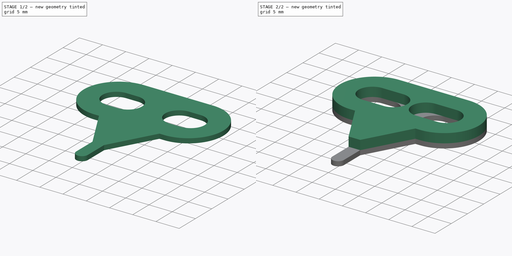
[diagram: build sequence overview — one tinted view per stage of 2, left to right]
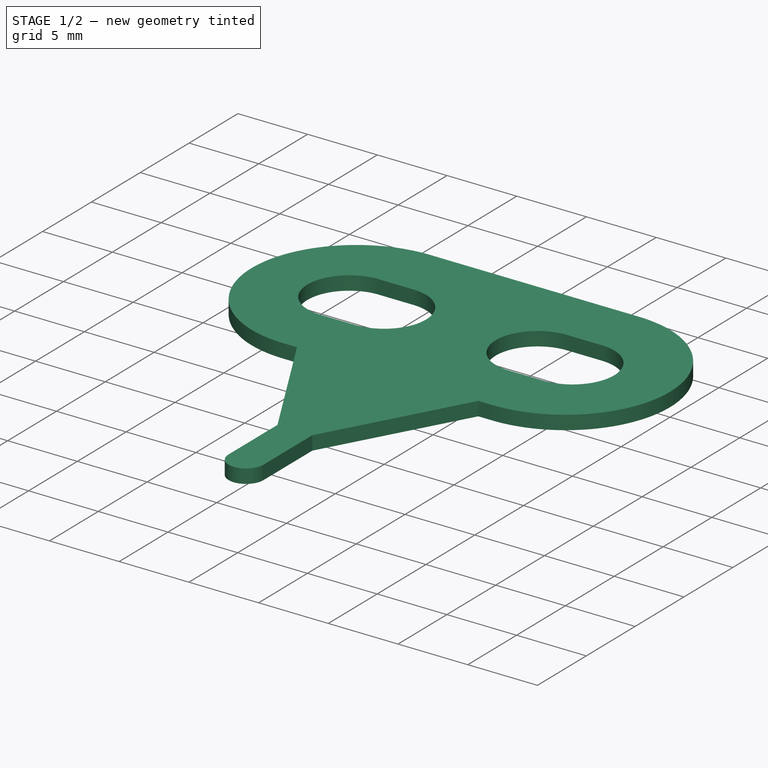
[diagram: stage 1 of 2 — iso view after this stage's code; geometry added in this stage tinted green]
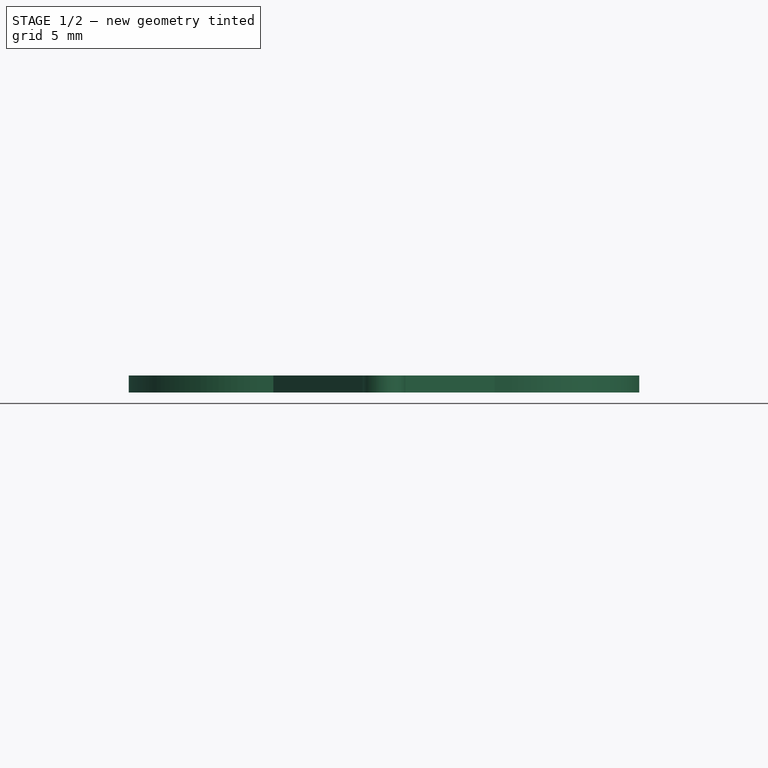
[diagram: stage 1 of 2 — front view after this stage's code; geometry added in this stage tinted green]
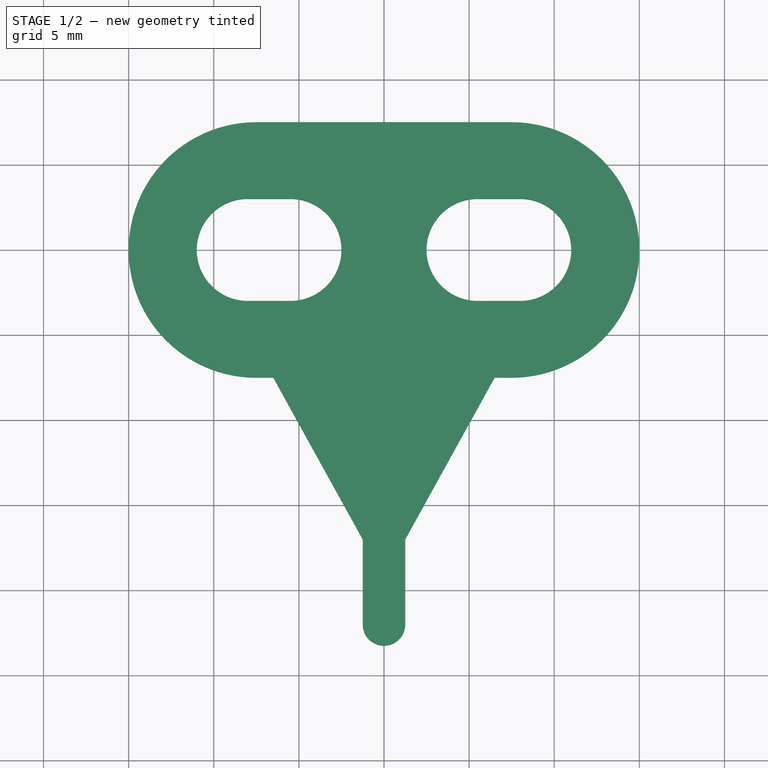
[diagram: stage 1 of 2 — top view after this stage's code; geometry added in this stage tinted green]
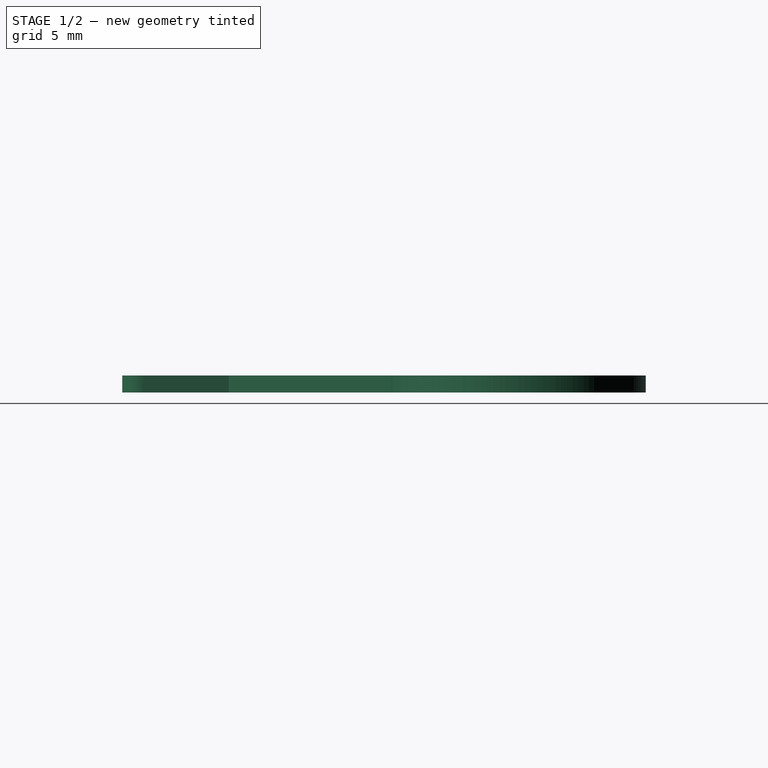
[diagram: stage 1 of 2 — right view after this stage's code; geometry added in this stage tinted green]
FCSTD DOCUMENT  (FreeCAD 0.18.3R)
Label: photo-disc
License: All rights reserved
LicenseURL: http://en.wikipedia.org/wiki/All_rights_reserved
objects: Sketcher::SketchObject×2, PartDesign::Pad×2, PartDesign::Body×1
note: 7 computed .brp shape members not serialized (recipe doc carries the construction recipe); baked Part::Feature solids carry a one-line shape summary decoded from their .brp

FEATURE [Sketcher::SketchObject] Sketch
  MapMode = 5
  Support = -> [XY_Plane]
  sketch-geometry (21):
    g0: ArcOfCircle CenterX=-7.5 CenterY=6e-16 CenterZ=0 NormalX=0 NormalY=0 NormalZ=1 AngleXU=0 Radius=7.5 StartAngle=1.5708 EndAngle=4.71239
    g1: ArcOfCircle CenterX=7.5 CenterY=-6e-16 CenterZ=0 NormalX=0 NormalY=0 NormalZ=1 AngleXU=0 Radius=7.5 StartAngle=4.71239 EndAngle=6.28319
    g2: LineSegment StartX=-7.5 StartY=7.5 StartZ=0 EndX=7.50003 EndY=7.5 EndZ=0
    g3: ArcOfCircle CenterX=-8 CenterY=0 CenterZ=0 NormalX=0 NormalY=0 NormalZ=1 AngleXU=0 Radius=3 StartAngle=1.5708 EndAngle=4.71239
    g4: ArcOfCircle CenterX=-5.5 CenterY=-2e-16 CenterZ=0 NormalX=0 NormalY=0 NormalZ=1 AngleXU=0 Radius=3 StartAngle=4.71239 EndAngle=7.85398
    g5: LineSegment StartX=-8 StartY=-3 StartZ=0 EndX=-5.5 EndY=-3 EndZ=0
    g6: LineSegment StartX=-8 StartY=3 StartZ=0 EndX=-5.5 EndY=3 EndZ=0
    g7: ArcOfCircle CenterX=5.5 CenterY=-2e-16 CenterZ=0 NormalX=0 NormalY=0 NormalZ=1 AngleXU=0 Radius=3 StartAngle=1.5708 EndAngle=4.71239
    g8: ArcOfCircle CenterX=8 CenterY=0 CenterZ=0 NormalX=0 NormalY=0 NormalZ=1 AngleXU=0 Radius=3 StartAngle=4.71239 EndAngle=7.85398
    g9: LineSegment StartX=5.5 StartY=-3 StartZ=0 EndX=8 EndY=-3 EndZ=0
    g10: LineSegment StartX=5.5 StartY=3 StartZ=0 EndX=8 EndY=3 EndZ=0
    g11: ArcOfCircle CenterX=7.5 CenterY=-6e-16 CenterZ=0 NormalX=0 NormalY=0 NormalZ=1 AngleXU=0 Radius=7.5 StartAngle=1e-16 EndAngle=1.57079
    g12: LineSegment [constr] StartX=-8 StartY=0 StartZ=0 EndX=0 EndY=0 EndZ=0
    g13: LineSegment [constr] StartX=0 StartY=0 StartZ=0 EndX=8 EndY=0 EndZ=0
    g14: ArcOfCircle CenterX=1.3e-15 CenterY=-22 CenterZ=0 NormalX=0 NormalY=0 NormalZ=1 AngleXU=0 Radius=1.25 StartAngle=3.14159 EndAngle=6.28319
    g15: LineSegment StartX=-7.5 StartY=-7.5 StartZ=0 EndX=-6.5 EndY=-7.5 EndZ=0
    g16: LineSegment StartX=6.5 StartY=-7.5 StartZ=0 EndX=7.5 EndY=-7.5 EndZ=0
    g17: LineSegment StartX=-1.25 StartY=-22 StartZ=0 EndX=-1.25 EndY=-17 EndZ=0
    g18: LineSegment StartX=1.25 StartY=-22 StartZ=0 EndX=1.25 EndY=-17 EndZ=0
    g19: LineSegment StartX=1.25 StartY=-17 StartZ=0 EndX=6.5 EndY=-7.5 EndZ=0
    g20: LineSegment StartX=-1.25 StartY=-17 StartZ=0 EndX=-6.5 EndY=-7.5 EndZ=0
  constraints (56):
    c: Tangent(g0,g2) = 1.5708
    c: Coincident(g2,g11) = 1.5708
    c: Equal(g0,g1)
    c: DistanceX(g0,g1) = 15
    c: DistanceY(g0,g0) = 15
    c: Symmetric(g0,g1,g-1)
    c: Tangent(g3,g6) = 1.5708
    c: Tangent(g3,g5) = -1.5708
    c: Tangent(g5,g4) = -1.5708
    c: Tangent(g6,g4) = 1.5708
    c: Horizontal(g5)
    c: Equal(g3,g4)
    c: Tangent(g7,g10) = 1.5708
    c: Tangent(g7,g9) = -1.5708
    c: Tangent(g9,g8) = -1.5708
    c: Tangent(g10,g8) = 1.5708
    c: Horizontal(g9)
    c: Equal(g7,g8)
    c: DistanceY(g3,g3) = 6
    c: DistanceY(g7,g7) = 6
    c: Coincident(g1,g11)
    c: Horizontal(g2)
    c: DistanceX(g3,g0) = 0.5
    c: DistanceX(g1,g8) = 0.5
    c: DistanceX(g0,g4) = 2
    c: DistanceX(g7,g1) = 2
    c: Coincident(g12,g3)
    c: Coincident(g12,g-1)
    c: Horizontal(g12)
    c: Coincident(g13,g8)
    c: Horizontal(g13)
    c: Coincident(g13,g-1)
    c: Coincident(g11,g1)
    c: PointOnObject(g1,g-1)
    c: Symmetric(g14,g14,g-2)
    c: Symmetric(g15,g16,g-2)
    c: Coincident(g15,g0)
    c: Coincident(g16,g1)
    c: DistanceY(g1,g2) = 15
    c: DistanceX(g14,g14) = 2.5
    c: Coincident(g17,g14)
    c: Vertical(g17)
    c: Coincident(g18,g14)
    c: Vertical(g18)
    c: Coincident(g19,g18)
    c: Coincident(g19,g16)
    c: Coincident(g20,g17)
    c: Coincident(g20,g15)
    c: Equal(g17,g18)
    c: DistanceY(g14,g14) = 0
    c: DistanceY(g14,g-1) = 22
    c: DistanceY(g18,g18) = 5
    c: Horizontal(g16)
    c: DistanceX(g16,g16) = 1
    c: DistanceX(g15,g15) = 1
    c: DistanceX(g0,g1) = 15
FEATURE [PartDesign::Pad] Pad
  Length = 1
  Length2 = 100
  Profile = -> Sketch
  Type = 0
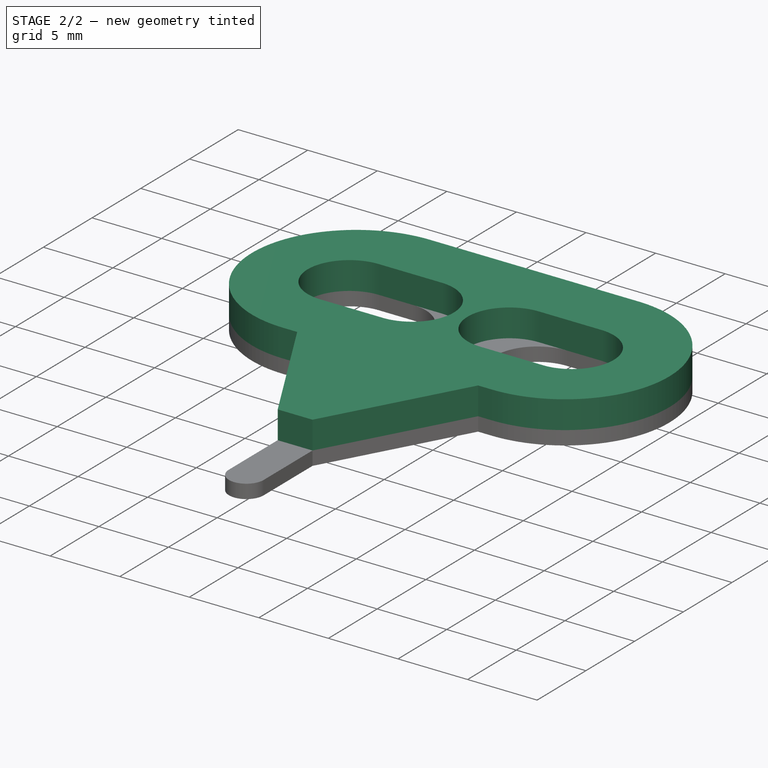
[diagram: stage 2 of 2 — iso view after this stage's code; geometry added in this stage tinted green]
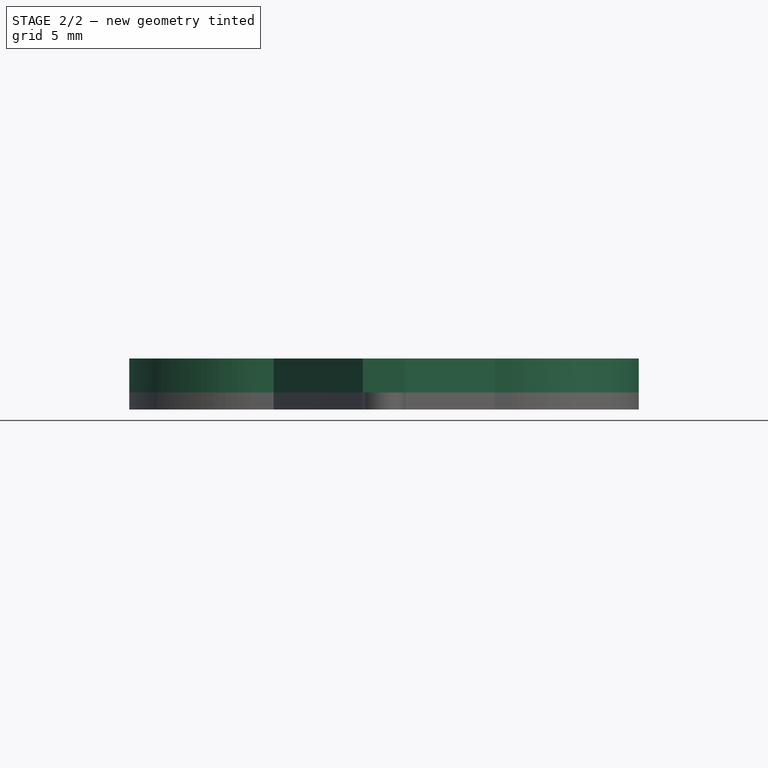
[diagram: stage 2 of 2 — front view after this stage's code; geometry added in this stage tinted green]
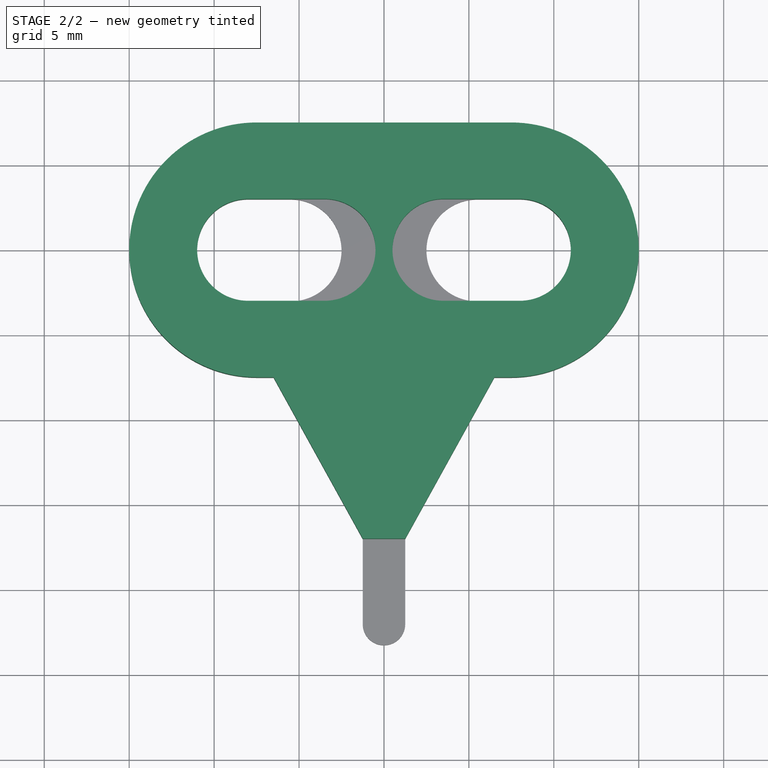
[diagram: stage 2 of 2 — top view after this stage's code; geometry added in this stage tinted green]
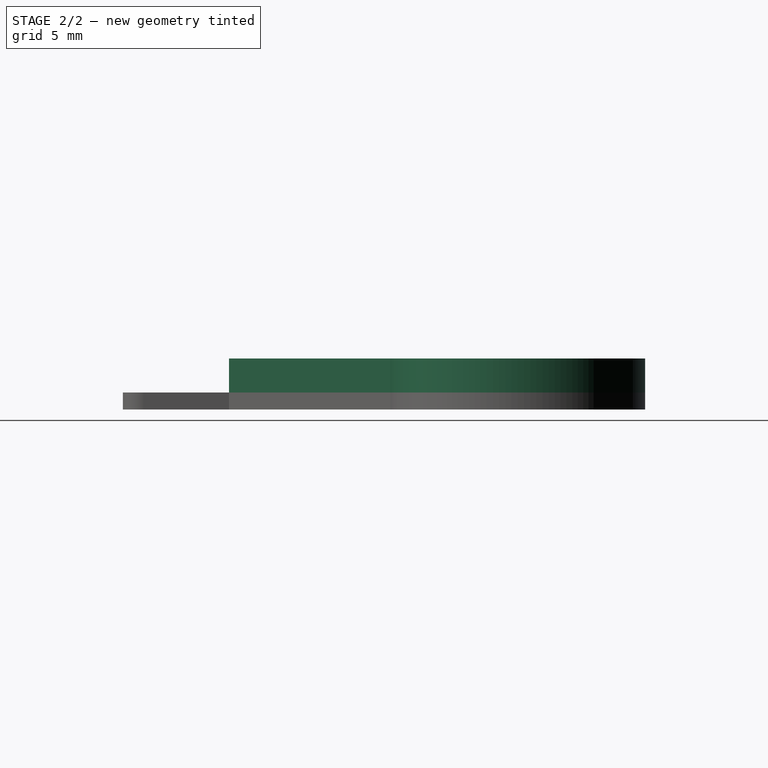
[diagram: stage 2 of 2 — right view after this stage's code; geometry added in this stage tinted green]
FEATURE [Sketcher::SketchObject] Sketch001
  MapMode = 5
  Placement = pos=(0,0,1) rot=(0,0,1;0rad)
  Support = -> [Pad]
  sketch-geometry (19):
    g0: ArcOfCircle CenterX=-7.5 CenterY=0 CenterZ=0 NormalX=0 NormalY=0 NormalZ=1 AngleXU=0 Radius=7.5 StartAngle=1.5708 EndAngle=4.71239
    g1: ArcOfCircle CenterX=7.5 CenterY=0 CenterZ=0 NormalX=0 NormalY=0 NormalZ=1 AngleXU=0 Radius=7.5 StartAngle=4.71239 EndAngle=6.28319
    g2: LineSegment StartX=-7.5 StartY=7.5 StartZ=0 EndX=7.49997 EndY=7.5 EndZ=0
    g3: ArcOfCircle CenterX=-8 CenterY=0 CenterZ=0 NormalX=0 NormalY=0 NormalZ=1 AngleXU=0 Radius=3 StartAngle=1.5708 EndAngle=4.71239
    g4: ArcOfCircle CenterX=-3.5 CenterY=-1e-16 CenterZ=0 NormalX=0 NormalY=0 NormalZ=1 AngleXU=0 Radius=3 StartAngle=4.71239 EndAngle=7.85398
    g5: LineSegment StartX=-8 StartY=-3 StartZ=0 EndX=-3.5 EndY=-3 EndZ=0
    g6: LineSegment StartX=-8 StartY=3 StartZ=0 EndX=-3.5 EndY=3 EndZ=0
    g7: ArcOfCircle CenterX=3.5 CenterY=-2e-16 CenterZ=0 NormalX=0 NormalY=0 NormalZ=1 AngleXU=0 Radius=3 StartAngle=1.5708 EndAngle=4.71239
    g8: ArcOfCircle CenterX=8 CenterY=0 CenterZ=0 NormalX=0 NormalY=0 NormalZ=1 AngleXU=0 Radius=3 StartAngle=4.71239 EndAngle=7.85398
    g9: LineSegment StartX=3.5 StartY=-3 StartZ=0 EndX=8 EndY=-3 EndZ=0
    g10: LineSegment StartX=3.5 StartY=3 StartZ=0 EndX=8 EndY=3 EndZ=0
    g11: ArcOfCircle CenterX=7.5 CenterY=0 CenterZ=0 NormalX=0 NormalY=0 NormalZ=1 AngleXU=0 Radius=7.5 StartAngle=0 EndAngle=1.5708
    g12: LineSegment [constr] StartX=-8 StartY=0 StartZ=0 EndX=0 EndY=0 EndZ=0
    g13: LineSegment [constr] StartX=0 StartY=0 StartZ=0 EndX=8 EndY=0 EndZ=0
    g14: LineSegment StartX=-7.5 StartY=-7.5 StartZ=0 EndX=-6.5 EndY=-7.5 EndZ=0
    g15: LineSegment StartX=6.5 StartY=-7.5 StartZ=0 EndX=7.5 EndY=-7.5 EndZ=0
    g16: LineSegment StartX=1.25 StartY=-17 StartZ=0 EndX=6.5 EndY=-7.5 EndZ=0
    g17: LineSegment StartX=-1.25 StartY=-17 StartZ=0 EndX=-6.5 EndY=-7.5 EndZ=0
    g18: LineSegment StartX=-1.25 StartY=-17 StartZ=0 EndX=1.25 EndY=-17 EndZ=0
  constraints (50):
    c: Tangent(g0,g2) = 1.5708
    c: Coincident(g2,g11) = 1.5708
    c: Equal(g0,g1)
    c: DistanceX(g0,g1) = 15
    c: DistanceY(g0,g0) = 15
    c: Symmetric(g0,g1,g-1)
    c: Tangent(g3,g6) = 1.5708
    c: Tangent(g3,g5) = -1.5708
    c: Tangent(g5,g4) = -1.5708
    c: Tangent(g6,g4) = 1.5708
    c: Horizontal(g5)
    c: Equal(g3,g4)
    c: Tangent(g7,g10) = 1.5708
    c: Tangent(g7,g9) = -1.5708
    c: Tangent(g9,g8) = -1.5708
    c: Tangent(g10,g8) = 1.5708
    c: Horizontal(g9)
    c: Equal(g7,g8)
    c: DistanceY(g3,g3) = 6
    c: DistanceY(g7,g7) = 6
    c: Coincident(g1,g11)
    c: Horizontal(g2)
    c: DistanceX(g3,g0) = 0.5
    c: DistanceX(g1,g8) = 0.5
    c: DistanceX(g0,g4) = 4
    c: DistanceX(g7,g1) = 4
    c: Coincident(g12,g3)
    c: Coincident(g12,g-1)
    c: Horizontal(g12)
    c: Coincident(g13,g8)
    c: Horizontal(g13)
    c: Coincident(g13,g-1)
    c: Coincident(g11,g1)
    c: PointOnObject(g1,g-1)
    c: Symmetric(g14,g15,g-2)
    c: Coincident(g14,g0)
    c: Coincident(g15,g1)
    c: DistanceY(g1,g2) = 15
    c: Coincident(g16,g15)
    c: Coincident(g17,g14)
    c: Horizontal(g15)
    c: DistanceX(g15,g15) = 1
    c: DistanceX(g14,g14) = 1
    c: DistanceX(g0,g1) = 15
    c: Coincident(g18,g17)
    c: Coincident(g18,g16)
    c: Horizontal(g18)
    c: DistanceY(g16,g15) = 9.5
    c: DistanceX(g17,g16) = 2.5
    c: Equal(g17,g16)
FEATURE [PartDesign::Pad] Pad001
  BaseFeature = -> Pad
  Length = 2
  Length2 = 100
  Profile = -> Sketch001
  Type = 0
FEATURE [PartDesign::Body] Body
  Group = -> [Sketch,Pad,Sketch001,Pad001]
  Origin = -> Origin
  Tip = -> Pad001
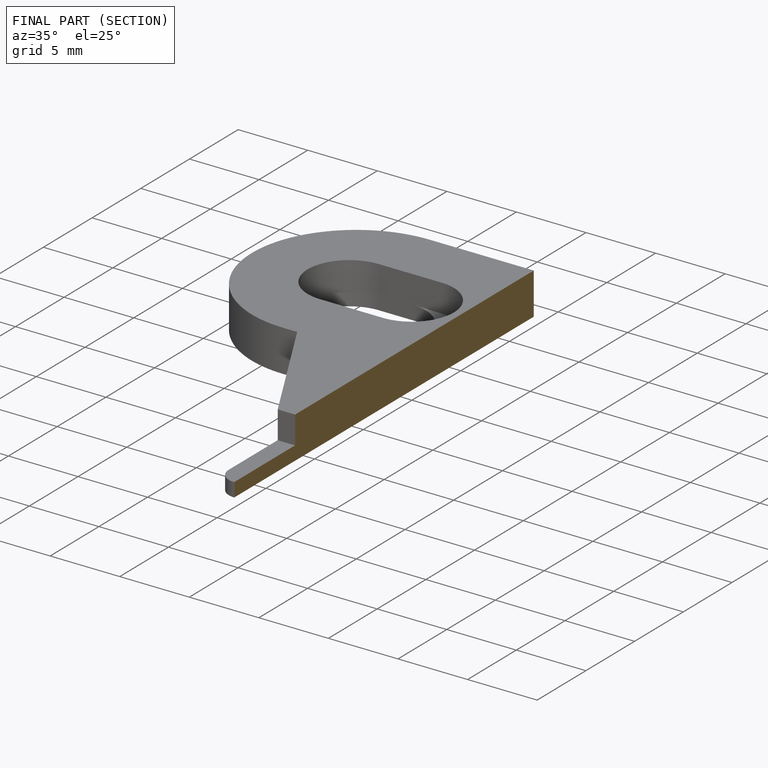
[diagram: finished part — half-section view (interior)]
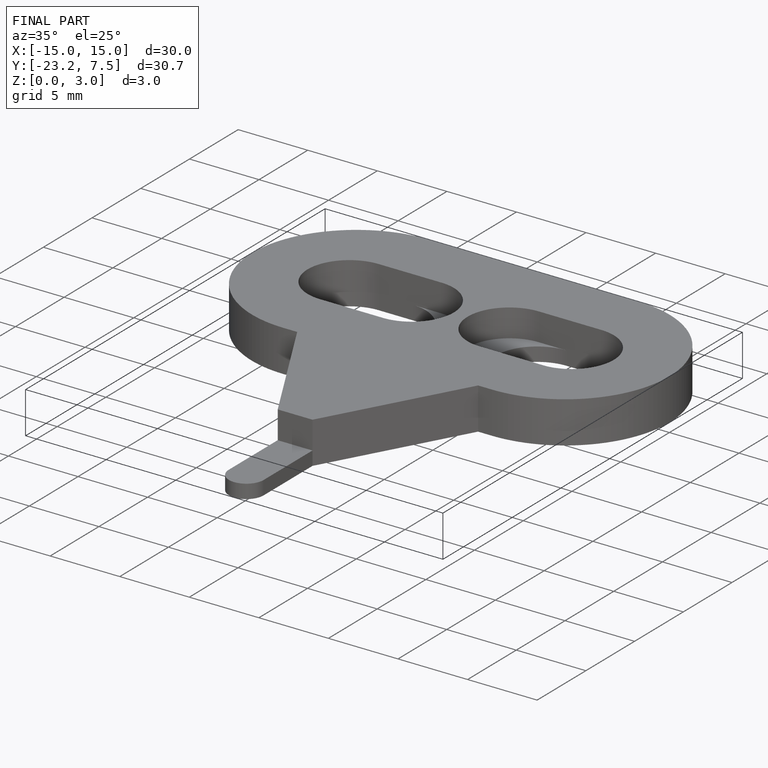
[diagram: finished part — iso view with bounding-box wireframe]
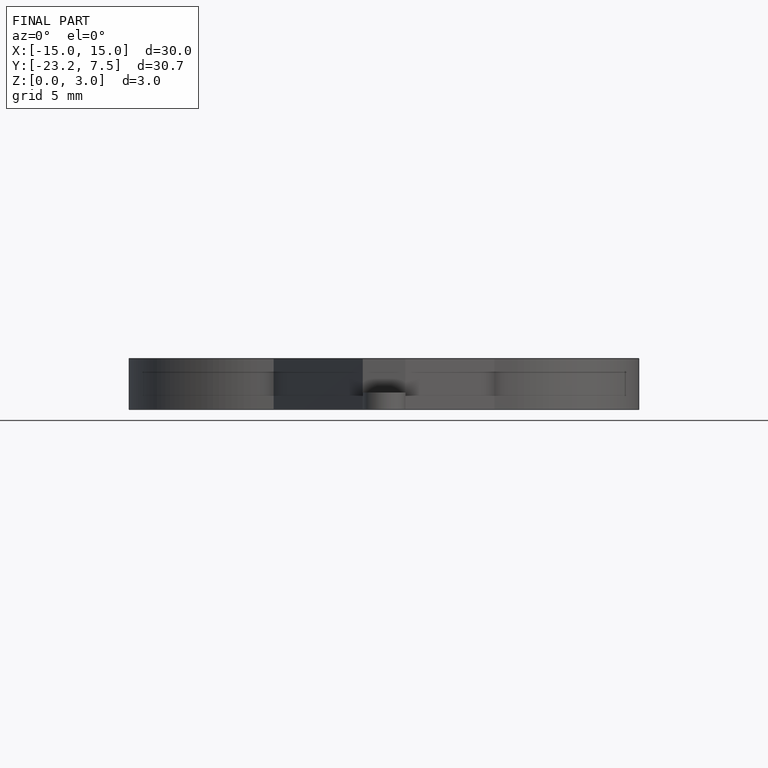
[diagram: finished part — front view with bounding-box wireframe]
